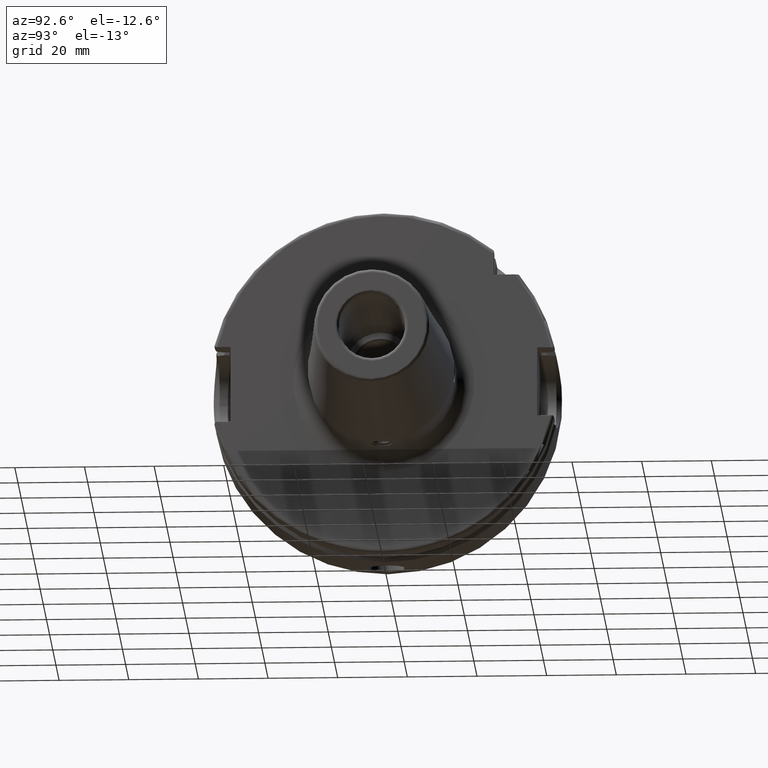
[diagram: clean part render]
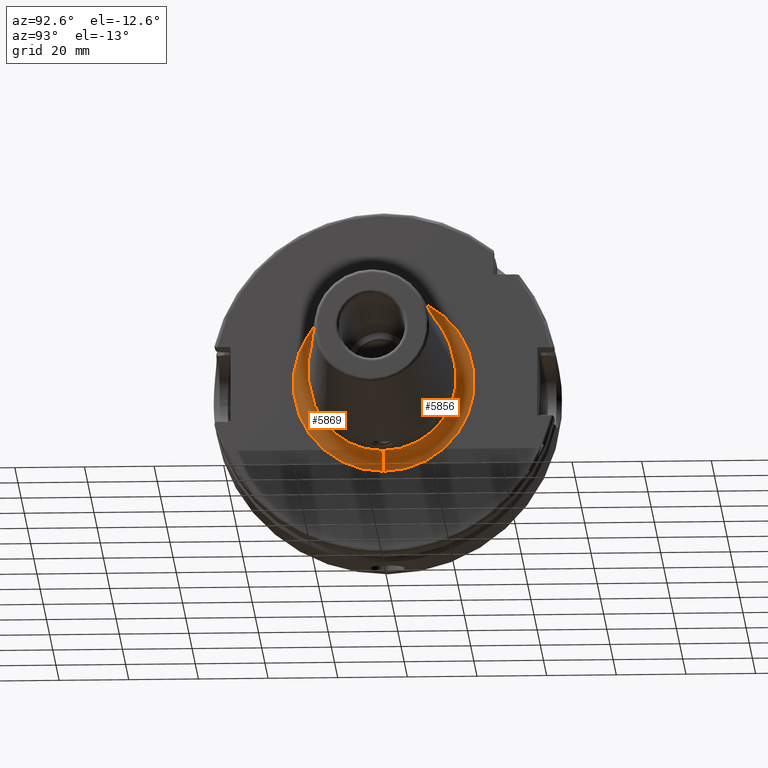
[diagram: same view with one multi-face feature highlighted, each face labeled with its STEP entity id]
A machine part, auxiliary view. The highlighted faces form ONE feature: a constant-radius fillet chain: 2 tangent blend faces with common blend radius 5 mm. The faces share edges in the B-rep.
Their STEP definitions:
[1] entity #5869 (Torus):
#1974=CARTESIAN_POINT('',(2.9E1,0.E0,0.E0));
#1975=DIRECTION('',(1.E0,0.E0,0.E0));
#1976=DIRECTION('',(0.E0,0.E0,1.E0));
#1977=AXIS2_PLACEMENT_3D('',#1974,#1975,#1976);
#2189=CARTESIAN_POINT('',(3.4E1,0.E0,-2.6E1));
#2190=DIRECTION('',(0.E0,1.E0,0.E0));
#2191=DIRECTION('',(-1.E0,0.E0,0.E0));
#2192=AXIS2_PLACEMENT_3D('',#2189,#2190,#2191);
#2199=CARTESIAN_POINT('',(3.4E1,0.E0,2.6E1));
#2200=DIRECTION('',(0.E0,-1.E0,0.E0));
#2201=DIRECTION('',(-1.E0,0.E0,0.E0));
#2202=AXIS2_PLACEMENT_3D('',#2199,#2200,#2201);
#2204=CARTESIAN_POINT('',(3.4E1,0.E0,0.E0));
#2205=DIRECTION('',(1.E0,0.E0,0.E0));
#2206=DIRECTION('',(0.E0,0.E0,1.E0));
#2207=AXIS2_PLACEMENT_3D('',#2204,#2205,#2206);
#3363=CARTESIAN_POINT('',(2.9E1,0.E0,-2.6E1));
#3364=CARTESIAN_POINT('',(2.9E1,0.E0,2.6E1));
#3365=VERTEX_POINT('',#3363);
#3366=VERTEX_POINT('',#3364);
#3420=CARTESIAN_POINT('',(3.4E1,0.E0,-2.1E1));
#3421=VERTEX_POINT('',#3420);
#3422=CARTESIAN_POINT('',(3.4E1,0.E0,2.1E1));
#3423=VERTEX_POINT('',#3422);
#5857=CARTESIAN_POINT('',(3.4E1,0.E0,0.E0));
#5858=DIRECTION('',(1.E0,0.E0,0.E0));
#5859=DIRECTION('',(0.E0,0.E0,1.E0));
#5860=AXIS2_PLACEMENT_3D('',#5857,#5858,#5859);
#5861=TOROIDAL_SURFACE('',#5860,2.6E1,5.E0);
#5862=ORIENTED_EDGE('',*,*,#5602,.F.);
#5863=ORIENTED_EDGE('',*,*,#5852,.T.);
#5865=ORIENTED_EDGE('',*,*,#5864,.T.);
#5866=ORIENTED_EDGE('',*,*,#5848,.F.);
#5867=EDGE_LOOP('',(#5862,#5863,#5865,#5866));
#5868=FACE_OUTER_BOUND('',#5867,.F.);
#5869=ADVANCED_FACE('',(#5868),#5861,.F.);
#1978=CIRCLE('',#1977,2.6E1);
#2193=CIRCLE('',#2192,5.E0);
#2203=CIRCLE('',#2202,5.E0);
#2208=CIRCLE('',#2207,2.1E1);
#5602=EDGE_CURVE('',#3366,#3365,#1978,.T.);
#5848=EDGE_CURVE('',#3365,#3421,#2193,.T.);
#5852=EDGE_CURVE('',#3366,#3423,#2203,.T.);
#5864=EDGE_CURVE('',#3423,#3421,#2208,.T.);
[2] entity #5856 (Torus):
#1969=CARTESIAN_POINT('',(2.9E1,0.E0,0.E0));
#1970=DIRECTION('',(1.E0,0.E0,0.E0));
#1971=DIRECTION('',(0.E0,0.E0,-1.E0));
#1972=AXIS2_PLACEMENT_3D('',#1969,#1970,#1971);
#2189=CARTESIAN_POINT('',(3.4E1,0.E0,-2.6E1));
#2190=DIRECTION('',(0.E0,1.E0,0.E0));
#2191=DIRECTION('',(-1.E0,0.E0,0.E0));
#2192=AXIS2_PLACEMENT_3D('',#2189,#2190,#2191);
#2194=CARTESIAN_POINT('',(3.4E1,0.E0,0.E0));
#2195=DIRECTION('',(1.E0,0.E0,0.E0));
#2196=DIRECTION('',(0.E0,4.388639337423E-10,-1.E0));
#2197=AXIS2_PLACEMENT_3D('',#2194,#2195,#2196);
#2199=CARTESIAN_POINT('',(3.4E1,0.E0,2.6E1));
#2200=DIRECTION('',(0.E0,-1.E0,0.E0));
#2201=DIRECTION('',(-1.E0,0.E0,0.E0));
#2202=AXIS2_PLACEMENT_3D('',#2199,#2200,#2201);
#3363=CARTESIAN_POINT('',(2.9E1,0.E0,-2.6E1));
#3364=CARTESIAN_POINT('',(2.9E1,0.E0,2.6E1));
#3365=VERTEX_POINT('',#3363);
#3366=VERTEX_POINT('',#3364);
#3420=CARTESIAN_POINT('',(3.4E1,0.E0,-2.1E1));
#3421=VERTEX_POINT('',#3420);
#3422=CARTESIAN_POINT('',(3.4E1,0.E0,2.1E1));
#3423=VERTEX_POINT('',#3422);
#5842=CARTESIAN_POINT('',(3.4E1,0.E0,0.E0));
#5843=DIRECTION('',(1.E0,0.E0,0.E0));
#5844=DIRECTION('',(0.E0,0.E0,1.E0));
#5845=AXIS2_PLACEMENT_3D('',#5842,#5843,#5844);
#5846=TOROIDAL_SURFACE('',#5845,2.6E1,5.E0);
#5847=ORIENTED_EDGE('',*,*,#5600,.F.);
#5849=ORIENTED_EDGE('',*,*,#5848,.T.);
#5851=ORIENTED_EDGE('',*,*,#5850,.T.);
#5853=ORIENTED_EDGE('',*,*,#5852,.F.);
#5854=EDGE_LOOP('',(#5847,#5849,#5851,#5853));
#5855=FACE_OUTER_BOUND('',#5854,.F.);
#5856=ADVANCED_FACE('',(#5855),#5846,.F.);
#1973=CIRCLE('',#1972,2.6E1);
#2193=CIRCLE('',#2192,5.E0);
#2198=CIRCLE('',#2197,2.1E1);
#2203=CIRCLE('',#2202,5.E0);
#5600=EDGE_CURVE('',#3365,#3366,#1973,.T.);
#5848=EDGE_CURVE('',#3365,#3421,#2193,.T.);
#5850=EDGE_CURVE('',#3421,#3423,#2198,.T.);
#5852=EDGE_CURVE('',#3366,#3423,#2203,.T.);